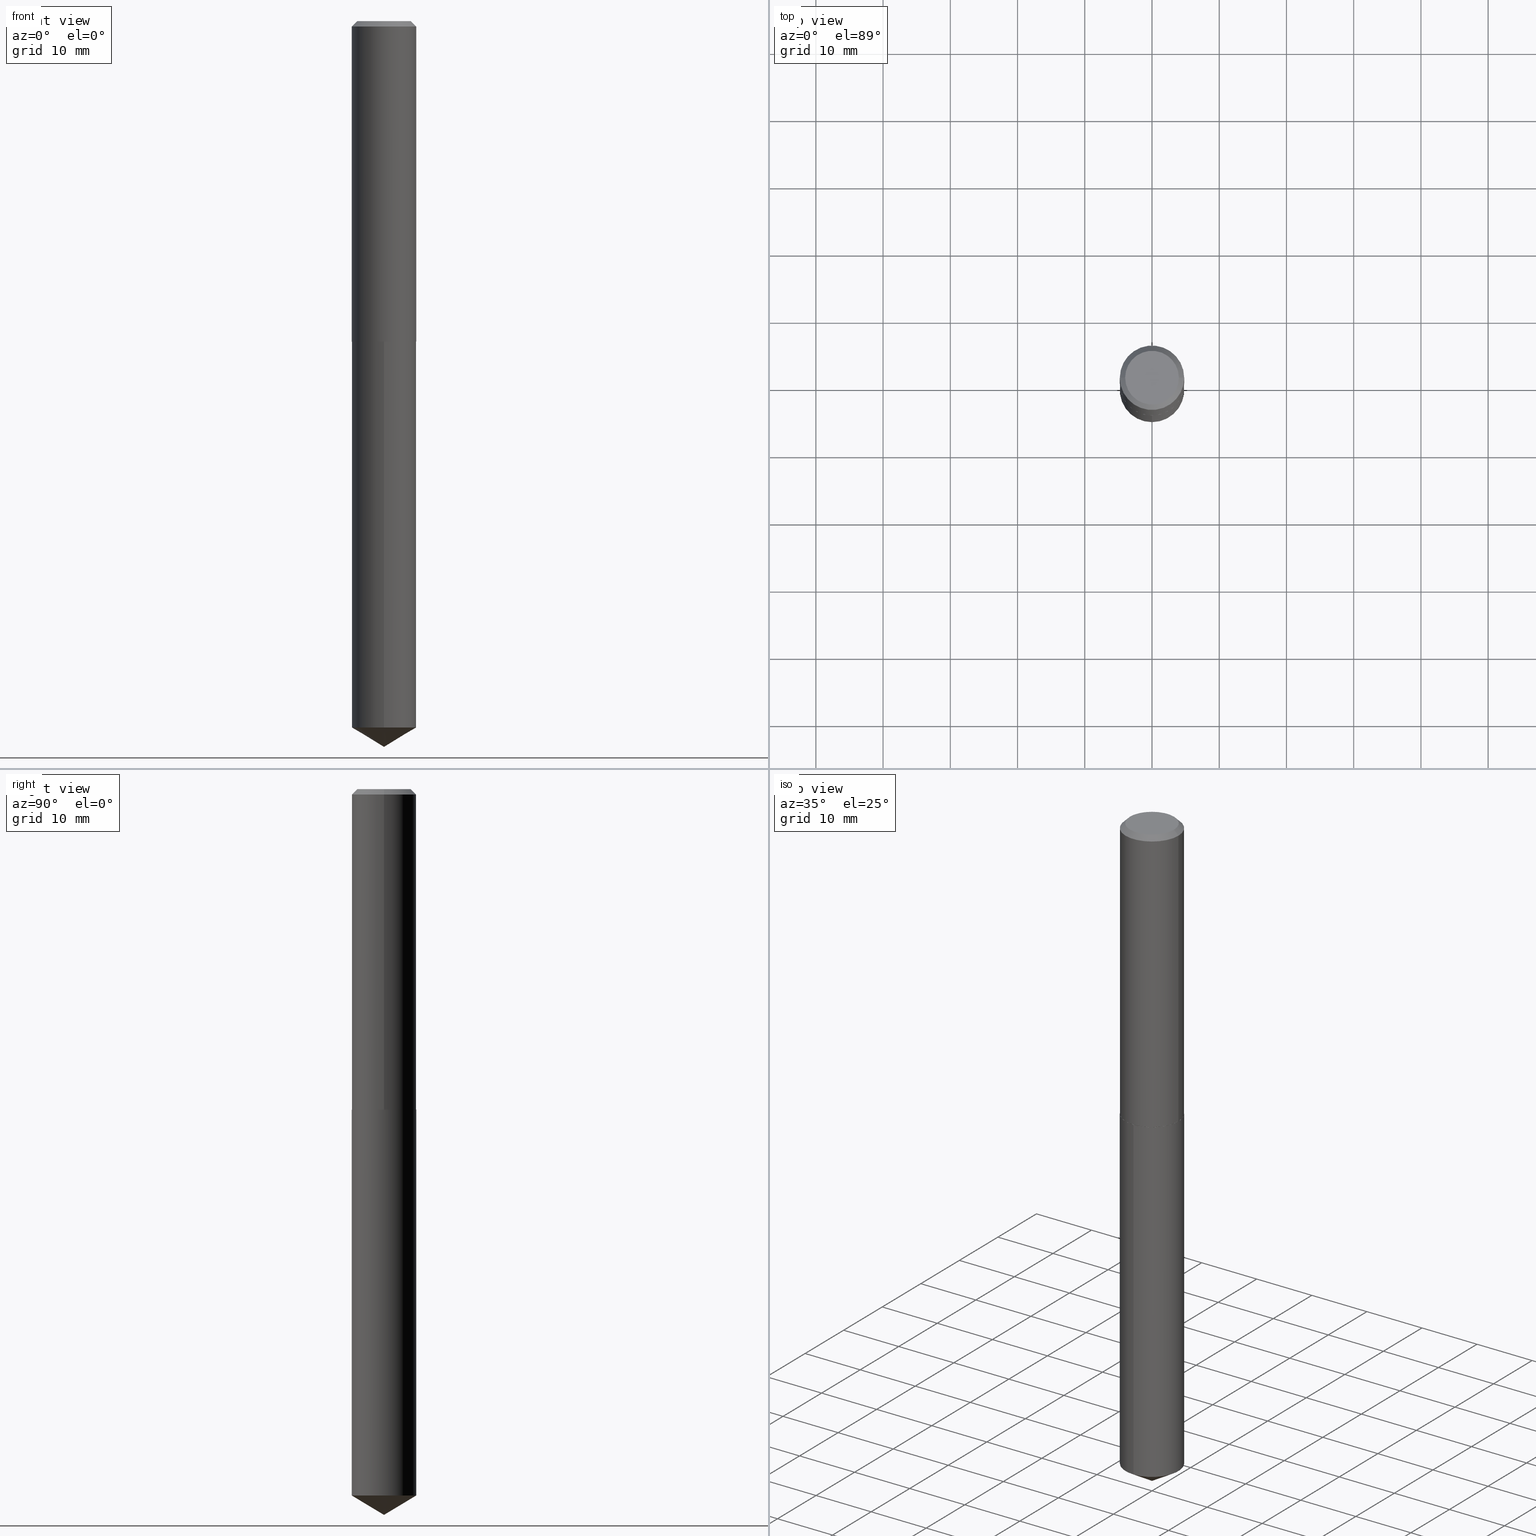
[diagram: canonical four-view strip — front | top / right | iso, engineering-drawing reading convention]
A machine part, canonical four-view strip (front | top / right | iso — engineering-drawing reading convention). The complete STEP part file that produces these views, byte-faithful:
ISO-10303-21;
HEADER;
FILE_DESCRIPTION (( 'STEP AP203' ),
    '1' );
FILE_NAME ('57201.STEP',
    '2024-04-22T23:53:59',
    ( '' ),
    ( '' ),
    'SwSTEP 2.0',
    'SolidWorks 2023',
    '' );
FILE_SCHEMA (( 'CONFIG_CONTROL_DESIGN' ));
ENDSEC;

DATA;
#1 = DIRECTION ( 'NONE',  ( -2.445468806185136597E-29, 3.491481338843145583E-15, 1.000000000000000000 ) ) ;
#2 = DIRECTION ( 'NONE',  ( -2.445480100698068853E-29, 3.491465164457782764E-15, 1.000000000000000000 ) ) ;
#3 = EDGE_LOOP ( 'NONE', ( #315, #22, #382 ) ) ;
#4 = DIRECTION ( 'NONE',  ( -2.445468806185136597E-29, 3.491481338843145583E-15, 1.000000000000000000 ) ) ;
#5 = ADVANCED_FACE ( 'NONE', ( #364 ), #340, .F. ) ;
#6 = VERTEX_POINT ( 'NONE', #379 ) ;
#7 = DIRECTION ( 'NONE',  ( -2.445480100698068853E-29, 3.491465164457782764E-15, 1.000000000000000000 ) ) ;
#8 = DIRECTION ( 'NONE',  ( 2.445468806185136597E-29, -3.491481338843145583E-15, -1.000000000000000000 ) ) ;
#9 = ORIENTED_EDGE ( 'NONE', *, *, #323, .F. ) ;
#10 = AXIS2_PLACEMENT_3D ( 'NONE', #254, #176, #144 ) ;
#11 = FACE_OUTER_BOUND ( 'NONE', #113, .T. ) ;
#12 = ORIENTED_EDGE ( 'NONE', *, *, #375, .F. ) ;
#13 = DIRECTION ( 'NONE',  ( -2.445468806185136877E-29, 3.491481338843145188E-15, 1.000000000000000000 ) ) ;
#14 = AXIS2_PLACEMENT_3D ( 'NONE', #338, #130, #98 ) ;
#15 = EDGE_CURVE ( 'NONE', #182, #253, #247, .T. ) ;
#16 = ORIENTED_EDGE ( 'NONE', *, *, #261, .T. ) ;
#17 = DESIGN_CONTEXT ( 'detailed design', #184, 'design' ) ;
#18 = COORDINATED_UNIVERSAL_TIME_OFFSET ( 5, 0, .BEHIND. ) ;
#19 = ORIENTED_EDGE ( 'NONE', *, *, #375, .T. ) ;
#20 = CC_DESIGN_PERSON_AND_ORGANIZATION_ASSIGNMENT ( #51, #390, ( #280 ) ) ;
#21 = AXIS2_PLACEMENT_3D ( 'NONE', #76, #211, #48 ) ;
#22 = ORIENTED_EDGE ( 'NONE', *, *, #201, .T. ) ;
#23 = DIRECTION ( 'NONE',  ( 1.000000000000000000, -6.982962677686266711E-15, 4.876179476867739168E-29 ) ) ;
#24 = ORIENTED_EDGE ( 'NONE', *, *, #27, .T. ) ;
#25 = CONICAL_SURFACE ( 'NONE', #142, 0.1885000000000002507, 0.7853981633975165577 ) ;
#26 = DIRECTION ( 'NONE',  ( -6.982962677686266711E-15, -1.000000000000000000, 2.898512460121233908E-15 ) ) ;
#27 = EDGE_CURVE ( 'NONE', #248, #325, #308, .T. ) ;
#28 = DIRECTION ( 'NONE',  ( -6.982962677686266711E-15, -1.000000000000000000, 2.898512460121233908E-15 ) ) ;
#29 = DIRECTION ( 'NONE',  ( -6.982962677686265922E-15, -1.000000000000000000, 3.468864327941581987E-15 ) ) ;
#30 = DIRECTION ( 'NONE',  ( 1.000000000000000000, -6.982962677686266711E-15, 4.876176775795936353E-29 ) ) ;
#31 = DIRECTION ( 'NONE',  ( -2.445480100698068853E-29, 3.491465164457782764E-15, 1.000000000000000000 ) ) ;
#32 = CARTESIAN_POINT ( 'NONE',  ( 1.039329042796679325E-28, -1.483872694894557399E-14, -4.250000000000000000 ) ) ;
#33 = CARTESIAN_POINT ( 'NONE',  ( 1.039329079976125017E-28, -1.483872694894557399E-14, -4.250000000000000000 ) ) ;
#34 = DIRECTION ( 'NONE',  ( 2.438088387897960049E-29, -3.491481338843145188E-15, -1.000000000000000000 ) ) ;
#35 = AXIS2_PLACEMENT_3D ( 'NONE', #92, #64, #271 ) ;
#36 = APPROVAL_DATE_TIME ( #282, #180 ) ;
#37 = LINE ( 'NONE', #100, #317 ) ;
#38 = VERTEX_POINT ( 'NONE', #268 ) ;
#39 = COORDINATED_UNIVERSAL_TIME_OFFSET ( 5, 0, .BEHIND. ) ;
#40 = CIRCLE ( 'NONE', #88, 0.1880000000000002780 ) ;
#41 = AXIS2_PLACEMENT_3D ( 'NONE', #359, #4, #133 ) ;
#42 = EDGE_CURVE ( 'NONE', #182, #248, #84, .T. ) ;
#43 = VERTEX_POINT ( 'NONE', #246 ) ;
#44 = CC_DESIGN_APPROVAL ( #267, ( #296 ) ) ;
#45 = PERSON_AND_ORGANIZATION ( #189, #75 ) ;
#46 = ORIENTED_EDGE ( 'NONE', *, *, #319, .T. ) ;
#47 = VECTOR ( 'NONE', #314, 39.37007874015748143 ) ;
#48 = DIRECTION ( 'NONE',  ( 1.000000000000000000, -6.982962677686266711E-15, 4.876176775795936353E-29 ) ) ;
#49 = CALENDAR_DATE ( 2024, 22, 4 ) ;
#50 = ORIENTED_EDGE ( 'NONE', *, *, #59, .T. ) ;
#51 = PERSON_AND_ORGANIZATION ( #189, #75 ) ;
#52 = PRODUCT_RELATED_PRODUCT_CATEGORY ( 'detail', '', ( #223 ) ) ;
#53 = DIRECTION ( 'NONE',  ( -2.445468806185136597E-29, 3.491481338843145583E-15, 1.000000000000000000 ) ) ;
#54 = DIRECTION ( 'NONE',  ( 0.7071067811865450192, -7.319954787623246579E-15, -0.7071067811865500152 ) ) ;
#55 = ORIENTED_EDGE ( 'NONE', *, *, #122, .F. ) ;
#56 = VECTOR ( 'NONE', #106, 39.37007874015748143 ) ;
#57 = FACE_OUTER_BOUND ( 'NONE', #293, .T. ) ;
#58 = LINE ( 'NONE', #85, #148 ) ;
#59 = EDGE_CURVE ( 'NONE', #38, #289, #80, .T. ) ;
#60 = DIRECTION ( 'NONE',  ( -2.445480100698068853E-29, 3.491465164457782764E-15, 1.000000000000000000 ) ) ;
#61 = APPROVAL_STATUS ( 'not_yet_approved' ) ;
#62 = ORIENTED_EDGE ( 'NONE', *, *, #42, .F. ) ;
#63 = AXIS2_PLACEMENT_3D ( 'NONE', #312, #285, #139 ) ;
#64 = DIRECTION ( 'NONE',  ( 2.445480100698068573E-29, -3.491465164457782764E-15, -1.000000000000000000 ) ) ;
#65 = AXIS2_PLACEMENT_3D ( 'NONE', #172, #146, #110 ) ;
#66 = CARTESIAN_POINT ( 'NONE',  ( -1.497417772954680954E-48, 2.137915722948511961E-34, 6.123233995736837940E-20 ) ) ;
#67 = ADVANCED_FACE ( 'NONE', ( #351 ), #326, .T. ) ;
#68 = EDGE_CURVE ( 'NONE', #253, #182, #40, .T. ) ;
#69 =( NAMED_UNIT ( * ) PLANE_ANGLE_UNIT ( ) SI_UNIT ( $, .RADIAN. ) );
#70 = ADVANCED_FACE ( 'NONE', ( #159 ), #165, .T. ) ;
#71 = AXIS2_PLACEMENT_3D ( 'NONE', #104, #77, #239 ) ;
#72 = ORIENTED_EDGE ( 'NONE', *, *, #68, .T. ) ;
#73 = DIRECTION ( 'NONE',  ( -2.445480100698068853E-29, 3.491465164457782764E-15, 1.000000000000000000 ) ) ;
#74 = AXIS2_PLACEMENT_3D ( 'NONE', #279, #8, #141 ) ;
#75 = ORGANIZATION ( 'UNSPECIFIED', 'UNSPECIFIED', '' ) ;
#76 = CARTESIAN_POINT ( 'NONE',  ( 0.000000000000000000, 0.000000000000000000, 0.000000000000000000 ) ) ;
#77 = DIRECTION ( 'NONE',  ( -2.445468806185136597E-29, 3.491481338843145583E-15, 1.000000000000000000 ) ) ;
#78 = EDGE_LOOP ( 'NONE', ( #358, #292 ) ) ;
#79 = ORIENTED_EDGE ( 'NONE', *, *, #68, .F. ) ;
#80 = LINE ( 'NONE', #242, #228 ) ;
#81 = FACE_OUTER_BOUND ( 'NONE', #194, .T. ) ;
#82 = ORIENTED_EDGE ( 'NONE', *, *, #319, .F. ) ;
#83 = VECTOR ( 'NONE', #269, 39.37007874015748143 ) ;
#84 = LINE ( 'NONE', #324, #116 ) ;
#85 = CARTESIAN_POINT ( 'NONE',  ( 0.1885000000000000286, -1.402312664418782881E-15, -0.03125000000000023592 ) ) ;
#86 = PRODUCT_DEFINITION ( 'UNKNOWN', '', #296, #17 ) ;
#87 = CLOSED_SHELL ( 'NONE', ( #152, #328, #70, #136, #337 ) ) ;
#88 = AXIS2_PLACEMENT_3D ( 'NONE', #320, #183, #99 ) ;
#89 = CARTESIAN_POINT ( 'NONE',  ( 0.1880000000000002780, -7.866307456413602737E-15, -1.876999999999999336 ) ) ;
#90 = MANIFOLD_SOLID_BREP ( 'Body-Move/Copy2[2]', #316 ) ;
#91 = CALENDAR_DATE ( 2024, 22, 4 ) ;
#92 = CARTESIAN_POINT ( 'NONE',  ( 4.590144949209500083E-29, -6.553510473008582355E-15, -1.876999999999999336 ) ) ;
#93 = APPROVAL_PERSON_ORGANIZATION ( #167, #318, #250 ) ;
#94 = LINE ( 'NONE', #33, #132 ) ;
#95 = ADVANCED_FACE ( 'NONE', ( #166 ), #356, .T. ) ;
#96 = MANIFOLD_SOLID_BREP ( 'Body-Move/Copy2[1]', #87 ) ;
#97 = PERSON_AND_ORGANIZATION_ROLE ( 'design_supplier' ) ;
#98 = DIRECTION ( 'NONE',  ( 1.000000000000000000, -6.982962677686264344E-15, 0.000000000000000000 ) ) ;
#99 = DIRECTION ( 'NONE',  ( 1.000000000000000000, -6.982962677686265922E-15, 0.000000000000000000 ) ) ;
#100 = CARTESIAN_POINT ( 'NONE',  ( 1.039324802836524486E-28, -1.483878766758823005E-14, -4.250000000000000000 ) ) ;
#101 = AXIS2_PLACEMENT_3D ( 'NONE', #198, #53, #30 ) ;
#102 = CC_DESIGN_PERSON_AND_ORGANIZATION_ASSIGNMENT ( #120, #97, ( #296 ) ) ;
#103 = APPROVAL_PERSON_ORGANIZATION ( #45, #267, #266 ) ;
#104 = CARTESIAN_POINT ( 'NONE',  ( 4.588922214806407281E-29, -6.551764732339160851E-15, -1.876499999999999613 ) ) ;
#105 = ADVANCED_BREP_SHAPE_REPRESENTATION ( '57201', ( #96, #90, #65 ), #243 ) ;
#106 = DIRECTION ( 'NONE',  ( -2.445468806185136877E-29, 3.491481338843145188E-15, 1.000000000000000000 ) ) ;
#107 = LINE ( 'NONE', #232, #191 ) ;
#108 = EDGE_LOOP ( 'NONE', ( #233, #206 ) ) ;
#109 = AXIS2_PLACEMENT_3D ( 'NONE', #226, #7, #222 ) ;
#110 = DIRECTION ( 'NONE',  ( 1.000000000000000000, 0.000000000000000000, 0.000000000000000000 ) ) ;
#111 =( LENGTH_UNIT ( ) NAMED_UNIT ( * ) SI_UNIT ( $, .METRE. ) );
#112 = DIRECTION ( 'NONE',  ( -2.445468806185136597E-29, 3.491481338843145583E-15, 1.000000000000000000 ) ) ;
#113 = EDGE_LOOP ( 'NONE', ( #335, #240, #50, #219 ) ) ;
#114 = CARTESIAN_POINT ( 'NONE',  ( 4.588922214806407281E-29, -6.551764732339160851E-15, -1.876499999999999613 ) ) ;
#115 = PERSON_AND_ORGANIZATION ( #189, #75 ) ;
#116 = VECTOR ( 'NONE', #217, 39.37007874015748143 ) ;
#117 = CIRCLE ( 'NONE', #41, 0.1885000000000000286 ) ;
#118 = EDGE_LOOP ( 'NONE', ( #346, #212, #385, #321 ) ) ;
#119 = ORIENTED_EDGE ( 'NONE', *, *, #42, .T. ) ;
#120 = PERSON_AND_ORGANIZATION ( #189, #75 ) ;
#121 = DIRECTION ( 'NONE',  ( 1.000000000000000000, -6.982962677686266711E-15, 0.000000000000000000 ) ) ;
#122 = EDGE_CURVE ( 'NONE', #352, #43, #255, .T. ) ;
#123 = ORIENTED_EDGE ( 'NONE', *, *, #214, .F. ) ;
#124 = AXIS2_PLACEMENT_3D ( 'NONE', #236, #205, #231 ) ;
#125 = DIRECTION ( 'NONE',  ( 1.000000000000000000, -6.982962677686264344E-15, 0.000000000000000000 ) ) ;
#126 = LOCAL_TIME ( 19, 53, 59.00000000000000000, #195 ) ;
#127 = ORIENTED_EDGE ( 'NONE', *, *, #15, .T. ) ;
#128 = DIRECTION ( 'NONE',  ( -1.000000000000000000, 6.982962677686265922E-15, -4.876176775795935793E-29 ) ) ;
#129 = DIRECTION ( 'NONE',  ( -6.982962677686266711E-15, -1.000000000000000000, 2.898512460121233908E-15 ) ) ;
#130 = DIRECTION ( 'NONE',  ( -2.445468806185136597E-29, 3.491481338843145583E-15, 1.000000000000000000 ) ) ;
#131 = EDGE_CURVE ( 'NONE', #43, #352, #215, .T. ) ;
#132 = VECTOR ( 'NONE', #270, 39.37007874015748854 ) ;
#133 = DIRECTION ( 'NONE',  ( 1.000000000000000000, -6.982962677686266711E-15, 0.000000000000000000 ) ) ;
#134 = DATE_AND_TIME ( #91, #362 ) ;
#135 = CARTESIAN_POINT ( 'NONE',  ( -2.994835545909361907E-48, 4.275831445897023923E-34, 1.224646799147367588E-19 ) ) ;
#136 = ADVANCED_FACE ( 'NONE', ( #330 ), #336, .T. ) ;
#137 = CALENDAR_DATE ( 2024, 22, 4 ) ;
#138 = CARTESIAN_POINT ( 'NONE',  ( 0.1572500000000000009, -1.240562987284178150E-15, 1.224646799229136555E-19 ) ) ;
#139 = DIRECTION ( 'NONE',  ( 1.000000000000000000, -6.982962677686266711E-15, 4.876179476867739168E-29 ) ) ;
#140 = EDGE_CURVE ( 'NONE', #290, #43, #94, .T. ) ;
#141 = DIRECTION ( 'NONE',  ( -1.000000000000000000, 6.982962677686266711E-15, 0.000000000000000000 ) ) ;
#142 = AXIS2_PLACEMENT_3D ( 'NONE', #199, #1, #192 ) ;
#143 = CARTESIAN_POINT ( 'NONE',  ( 0.1885000000000002507, -7.868053197083023451E-15, -1.876499999999999613 ) ) ;
#144 = DIRECTION ( 'NONE',  ( -1.000000000000000000, 6.982962677686266711E-15, 0.000000000000000000 ) ) ;
#145 = EDGE_LOOP ( 'NONE', ( #357, #329, #55 ) ) ;
#146 = DIRECTION ( 'NONE',  ( 0.000000000000000000, 0.000000000000000000, 1.000000000000000000 ) ) ;
#147 = ORIENTED_EDGE ( 'NONE', *, *, #203, .T. ) ;
#148 = VECTOR ( 'NONE', #54, 39.37007874015748143 ) ;
#149 = PERSON_AND_ORGANIZATION ( #189, #75 ) ;
#150 = ORIENTED_EDGE ( 'NONE', *, *, #15, .F. ) ;
#151 = ORIENTED_EDGE ( 'NONE', *, *, #174, .F. ) ;
#152 = ADVANCED_FACE ( 'NONE', ( #57 ), #297, .T. ) ;
#153 = ORIENTED_EDGE ( 'NONE', *, *, #377, .F. ) ;
#154 = CC_DESIGN_SECURITY_CLASSIFICATION ( #280, ( #296 ) ) ;
#155 = APPROVAL_DATE_TIME ( #260, #267 ) ;
#156 = ORIENTED_EDGE ( 'NONE', *, *, #365, .F. ) ;
#157 = DIRECTION ( 'NONE',  ( -0.7071067811865450192, 2.468850131082230634E-15, -0.7071067811865500152 ) ) ;
#158 = FACE_OUTER_BOUND ( 'NONE', #78, .T. ) ;
#159 = FACE_OUTER_BOUND ( 'NONE', #3, .T. ) ;
#160 = VERTEX_POINT ( 'NONE', #251 ) ;
#161 = CARTESIAN_POINT ( 'NONE',  ( 4.590144949209500083E-29, -6.553510473008582355E-15, -1.876999999999999336 ) ) ;
#162 = DIRECTION ( 'NONE',  ( -6.982962677686266711E-15, -1.000000000000000000, 2.898512460121233908E-15 ) ) ;
#163 = SHAPE_DEFINITION_REPRESENTATION ( #341, #105 ) ;
#164 = DIRECTION ( 'NONE',  ( -2.445480100698068853E-29, 3.491465164457782764E-15, 1.000000000000000000 ) ) ;
#165 = CONICAL_SURFACE ( 'NONE', #109, 65.52281426576865897, 1.029744258676656088 ) ;
#166 = FACE_OUTER_BOUND ( 'NONE', #349, .T. ) ;
#167 = PERSON_AND_ORGANIZATION ( #189, #75 ) ;
#168 = CC_DESIGN_APPROVAL ( #180, ( #86 ) ) ;
#169 = LINE ( 'NONE', #221, #309 ) ;
#170 = CALENDAR_DATE ( 2024, 22, 4 ) ;
#171 = CARTESIAN_POINT ( 'NONE',  ( -1.316288464743815466E-15, -0.1885000000000065790, -1.876999999999998892 ) ) ;
#172 = CARTESIAN_POINT ( 'NONE',  ( 0.000000000000000000, 0.000000000000000000, 0.000000000000000000 ) ) ;
#173 = CONICAL_SURFACE ( 'NONE', #303, 65.52281426576865897, 1.029744258676656088 ) ;
#174 = EDGE_CURVE ( 'NONE', #6, #289, #117, .T. ) ;
#175 = ORIENTED_EDGE ( 'NONE', *, *, #203, .F. ) ;
#176 = DIRECTION ( 'NONE',  ( 2.445468806185136597E-29, -3.491481338843145583E-15, -1.000000000000000000 ) ) ;
#177 = CALENDAR_DATE ( 2024, 22, 4 ) ;
#178 = EDGE_LOOP ( 'NONE', ( #82, #378, #288, #153 ) ) ;
#179 = AXIS2_PLACEMENT_3D ( 'NONE', #114, #387, #125 ) ;
#180 = APPROVAL ( #347, 'UNSPECIFIED' ) ;
#181 = APPROVAL_STATUS ( 'not_yet_approved' ) ;
#182 = VERTEX_POINT ( 'NONE', #89 ) ;
#183 = DIRECTION ( 'NONE',  ( -2.445468806185136597E-29, 3.491481338843145583E-15, 1.000000000000000000 ) ) ;
#184 = APPLICATION_CONTEXT ( 'configuration controlled 3d designs of mechanical parts and assemblies' ) ;
#185 = CIRCLE ( 'NONE', #124, 0.1885000000000000286 ) ;
#186 = LOCAL_TIME ( 19, 53, 59.00000000000000000, #18 ) ;
#187 = ORIENTED_EDGE ( 'NONE', *, *, #122, .T. ) ;
#188 = CARTESIAN_POINT ( 'NONE',  ( 4.590144949209500083E-29, -6.553510473008582355E-15, -1.876999999999999336 ) ) ;
#189 = PERSON ( 'UNSPECIFIED', 'UNSPECIFIED', 'UNSPECIFIED', ('UNSPECIFIED'), ('UNSPECIFIED'), ('UNSPECIFIED') ) ;
#190 = FACE_OUTER_BOUND ( 'NONE', #244, .T. ) ;
#191 = VECTOR ( 'NONE', #13, 39.37007874015748143 ) ;
#192 = DIRECTION ( 'NONE',  ( 1.000000000000000000, -6.982962677686264344E-15, 0.000000000000000000 ) ) ;
#193 = CARTESIAN_POINT ( 'NONE',  ( -0.1885000000000002507, -5.212391675431369628E-15, -1.876499999999999613 ) ) ;
#194 = EDGE_LOOP ( 'NONE', ( #150, #79 ) ) ;
#195 = COORDINATED_UNIVERSAL_TIME_OFFSET ( 5, 0, .BEHIND. ) ;
#196 = FACE_OUTER_BOUND ( 'NONE', #283, .T. ) ;
#197 = AXIS2_PLACEMENT_3D ( 'NONE', #272, #2, #129 ) ;
#198 = CARTESIAN_POINT ( 'NONE',  ( 0.000000000000000000, 0.000000000000000000, 0.000000000000000000 ) ) ;
#199 = CARTESIAN_POINT ( 'NONE',  ( 4.588922214806407281E-29, -6.551764732339160851E-15, -1.876499999999999613 ) ) ;
#200 = AXIS2_PLACEMENT_3D ( 'NONE', #370, #73, #344 ) ;
#201 = EDGE_CURVE ( 'NONE', #290, #352, #37, .T. ) ;
#202 = APPLICATION_PROTOCOL_DEFINITION ( 'international standard', 'config_control_design', 1994, #371 ) ;
#203 = EDGE_CURVE ( 'NONE', #253, #325, #229, .T. ) ;
#204 = PERSON_AND_ORGANIZATION ( #189, #75 ) ;
#205 = DIRECTION ( 'NONE',  ( -2.445480100698068853E-29, 3.491465164457782764E-15, 1.000000000000000000 ) ) ;
#206 = ORIENTED_EDGE ( 'NONE', *, *, #302, .T. ) ;
#207 = CC_DESIGN_PERSON_AND_ORGANIZATION_ASSIGNMENT ( #204, #368, ( #223 ) ) ;
#208 = CARTESIAN_POINT ( 'NONE',  ( 4.590144949209500083E-29, -6.553510473008582355E-15, -1.876999999999999336 ) ) ;
#209 = ORIENTED_EDGE ( 'NONE', *, *, #365, .T. ) ;
#210 = AXIS2_PLACEMENT_3D ( 'NONE', #188, #291, #383 ) ;
#211 = DIRECTION ( 'NONE',  ( -2.445468806185136597E-29, 3.491481338843145583E-15, 1.000000000000000000 ) ) ;
#212 = ORIENTED_EDGE ( 'NONE', *, *, #354, .T. ) ;
#213 = DATE_TIME_ROLE ( 'creation_date' ) ;
#214 = EDGE_CURVE ( 'NONE', #245, #160, #185, .T. ) ;
#215 = CIRCLE ( 'NONE', #234, 0.1885000000000000286 ) ;
#216 = PLANE ( 'NONE',  #286 ) ;
#217 = DIRECTION ( 'NONE',  ( 0.7071067811865957564, -2.468850131082761932E-15, 0.7071067811864992780 ) ) ;
#218 = CARTESIAN_POINT ( 'NONE',  ( -8.588547489380520474E-28, 1.226205011349528872E-13, 35.12007874015748143 ) ) ;
#219 = ORIENTED_EDGE ( 'NONE', *, *, #264, .T. ) ;
#220 = CARTESIAN_POINT ( 'NONE',  ( 1.011628870664295292E-28, -1.444330618934138545E-14, -4.136737773313305055 ) ) ;
#221 = CARTESIAN_POINT ( 'NONE',  ( 1.339373056907834611E-15, 0.1884999999999934506, -1.877000000000000002 ) ) ;
#222 = DIRECTION ( 'NONE',  ( -6.982962677686265922E-15, -1.000000000000000000, 3.468864327941581987E-15 ) ) ;
#223 = PRODUCT ( '57201', '57201', '', ( #311 ) ) ;
#224 = DATE_AND_TIME ( #137, #126 ) ;
#225 = DIRECTION ( 'NONE',  ( -2.445468806185136597E-29, 3.491481338843145583E-15, 1.000000000000000000 ) ) ;
#226 = CARTESIAN_POINT ( 'NONE',  ( -8.588547489380520474E-28, 1.226205011349528872E-13, 35.12007874015748143 ) ) ;
#227 = FACE_OUTER_BOUND ( 'NONE', #145, .T. ) ;
#228 = VECTOR ( 'NONE', #157, 39.37007874015748143 ) ;
#229 = LINE ( 'NONE', #342, #47 ) ;
#230 = CARTESIAN_POINT ( 'NONE',  ( 0.1885000000000001119, -1.316288464743862009E-15, 9.191593222375345023E-30 ) ) ;
#231 = DIRECTION ( 'NONE',  ( -6.982962677686266711E-15, -1.000000000000000000, 2.898512460121233908E-15 ) ) ;
#232 = CARTESIAN_POINT ( 'NONE',  ( -0.1885000000000001119, 1.339373056907789646E-15, -9.272192645130503377E-30 ) ) ;
#233 = ORIENTED_EDGE ( 'NONE', *, *, #249, .T. ) ;
#234 = AXIS2_PLACEMENT_3D ( 'NONE', #220, #60, #28 ) ;
#235 = PERSON_AND_ORGANIZATION ( #189, #75 ) ;
#236 = CARTESIAN_POINT ( 'NONE',  ( 4.590144949209500083E-29, -6.553510473008582355E-15, -1.876999999999999336 ) ) ;
#237 = CC_DESIGN_DATE_AND_TIME_ASSIGNMENT ( #224, #327, ( #280 ) ) ;
#238 = LENGTH_MEASURE_WITH_UNIT ( LENGTH_MEASURE( 0.02539999999999999897 ), #111 );
#239 = DIRECTION ( 'NONE',  ( 1.000000000000000000, -6.982962677686264344E-15, 0.000000000000000000 ) ) ;
#240 = ORIENTED_EDGE ( 'NONE', *, *, #249, .F. ) ;
#241 = AXIS2_PLACEMENT_3D ( 'NONE', #161, #300, #26 ) ;
#242 = CARTESIAN_POINT ( 'NONE',  ( -0.1885000000000000286, 1.207179672905012316E-15, -0.03125000000000023592 ) ) ;
#243 =( GEOMETRIC_REPRESENTATION_CONTEXT ( 3 ) GLOBAL_UNCERTAINTY_ASSIGNED_CONTEXT ( ( #276 ) ) GLOBAL_UNIT_ASSIGNED_CONTEXT ( ( #376, #69, #256 ) ) REPRESENTATION_CONTEXT ( 'NONE', 'WORKASPACE' ) );
#244 = EDGE_LOOP ( 'NONE', ( #175, #72, #119, #384 ) ) ;
#245 = VERTEX_POINT ( 'NONE', #171 ) ;
#246 = CARTESIAN_POINT ( 'NONE',  ( 1.339373056907889436E-15, 0.1884999999999855125, -4.136737773313305944 ) ) ;
#247 = CIRCLE ( 'NONE', #210, 0.1880000000000002780 ) ;
#248 = VERTEX_POINT ( 'NONE', #143 ) ;
#249 = EDGE_CURVE ( 'NONE', #38, #322, #380, .T. ) ;
#250 = APPROVAL_ROLE ( '' ) ;
#251 = CARTESIAN_POINT ( 'NONE',  ( 1.339373056907890225E-15, 0.1884999999999934506, -1.877000000000000002 ) ) ;
#252 = LINE ( 'NONE', #332, #83 ) ;
#253 = VERTEX_POINT ( 'NONE', #369 ) ;
#254 = CARTESIAN_POINT ( 'NONE',  ( 7.642090019328608793E-31, -1.091087918388491130E-16, -0.03125000000000023592 ) ) ;
#255 = CIRCLE ( 'NONE', #372, 0.1885000000000000286 ) ;
#256 =( NAMED_UNIT ( * ) SI_UNIT ( $, .STERADIAN. ) SOLID_ANGLE_UNIT ( ) );
#257 = ADVANCED_FACE ( 'NONE', ( #339 ), #353, .T. ) ;
#258 = CIRCLE ( 'NONE', #295, 0.1572500000000000009 ) ;
#259 = PERSON_AND_ORGANIZATION_ROLE ( 'creator' ) ;
#260 = DATE_AND_TIME ( #49, #186 ) ;
#261 = EDGE_CURVE ( 'NONE', #325, #248, #345, .T. ) ;
#262 = APPROVAL_PERSON_ORGANIZATION ( #235, #180, #313 ) ;
#263 = PERSON_AND_ORGANIZATION_ROLE ( 'creator' ) ;
#264 = EDGE_CURVE ( 'NONE', #289, #6, #350, .T. ) ;
#265 = CARTESIAN_POINT ( 'NONE',  ( 7.642090019328608793E-31, -1.091087918388491130E-16, -0.03125000000000023592 ) ) ;
#266 = APPROVAL_ROLE ( '' ) ;
#267 = APPROVAL ( #181, 'UNSPECIFIED' ) ;
#268 = CARTESIAN_POINT ( 'NONE',  ( -0.1572500000000000009, 1.152625276985588752E-15, 1.224646799068669035E-19 ) ) ;
#269 = DIRECTION ( 'NONE',  ( -2.445480100698068853E-29, 3.491465164457782764E-15, 1.000000000000000000 ) ) ;
#270 = DIRECTION ( 'NONE',  ( 6.090539988449786324E-15, 0.8571673007021148871, 0.5150380749100498257 ) ) ;
#271 = DIRECTION ( 'NONE',  ( 6.982962677686265922E-15, 1.000000000000000000, -3.491465164457782764E-15 ) ) ;
#272 = CARTESIAN_POINT ( 'NONE',  ( 4.590144949209500083E-29, -6.553510473008582355E-15, -1.876999999999999336 ) ) ;
#273 = PLANE ( 'NONE',  #35 ) ;
#274 = CARTESIAN_POINT ( 'NONE',  ( -0.1885000000000000286, -1.991063705181214936E-15, -0.03125000000000023592 ) ) ;
#275 = CARTESIAN_POINT ( 'NONE',  ( 1.011628870664295292E-28, -1.444330618934138545E-14, -4.136737773313305055 ) ) ;
#276 = UNCERTAINTY_MEASURE_WITH_UNIT (LENGTH_MEASURE( 1.000000000000000082E-05 ), #376, 'distance_accuracy_value', 'NONE');
#277 = EDGE_LOOP ( 'NONE', ( #156, #16, #19, #374 ) ) ;
#278 = DATE_AND_TIME ( #170, #304 ) ;
#279 = CARTESIAN_POINT ( 'NONE',  ( 7.642090019328608793E-31, -1.091087918388491130E-16, -0.03125000000000023592 ) ) ;
#280 = SECURITY_CLASSIFICATION ( '', '', #298 ) ;
#281 = ORIENTED_EDGE ( 'NONE', *, *, #27, .F. ) ;
#282 = DATE_AND_TIME ( #177, #287 ) ;
#283 = EDGE_LOOP ( 'NONE', ( #127, #147, #281, #62 ) ) ;
#284 = ADVANCED_FACE ( 'NONE', ( #81 ), #216, .F. ) ;
#285 = DIRECTION ( 'NONE',  ( -2.445468806185136597E-29, 3.491481338843145583E-15, 1.000000000000000000 ) ) ;
#286 = AXIS2_PLACEMENT_3D ( 'NONE', #208, #299, #333 ) ;
#287 = LOCAL_TIME ( 19, 53, 59.00000000000000000, #39 ) ;
#288 = ORIENTED_EDGE ( 'NONE', *, *, #323, .T. ) ;
#289 = VERTEX_POINT ( 'NONE', #274 ) ;
#290 = VERTEX_POINT ( 'NONE', #32 ) ;
#291 = DIRECTION ( 'NONE',  ( -2.445468806185136597E-29, 3.491481338843145583E-15, 1.000000000000000000 ) ) ;
#292 = ORIENTED_EDGE ( 'NONE', *, *, #377, .T. ) ;
#293 = EDGE_LOOP ( 'NONE', ( #187, #46, #123, #9 ) ) ;
#294 = APPROVAL_DATE_TIME ( #134, #318 ) ;
#295 = AXIS2_PLACEMENT_3D ( 'NONE', #135, #225, #23 ) ;
#296 = PRODUCT_DEFINITION_FORMATION_WITH_SPECIFIED_SOURCE ( 'ANY', '', #223, .NOT_KNOWN. ) ;
#297 = CYLINDRICAL_SURFACE ( 'NONE', #197, 0.1885000000000000286 ) ;
#298 = SECURITY_CLASSIFICATION_LEVEL ( 'unclassified' ) ;
#299 = DIRECTION ( 'NONE',  ( -2.438088387897960049E-29, 3.491481338843145188E-15, 1.000000000000000000 ) ) ;
#300 = DIRECTION ( 'NONE',  ( -2.445480100698068853E-29, 3.491465164457782764E-15, 1.000000000000000000 ) ) ;
#301 = AXIS2_PLACEMENT_3D ( 'NONE', #66, #34, #128 ) ;
#302 = EDGE_CURVE ( 'NONE', #322, #38, #258, .T. ) ;
#303 = AXIS2_PLACEMENT_3D ( 'NONE', #218, #164, #29 ) ;
#304 = LOCAL_TIME ( 19, 53, 59.00000000000000000, #305 ) ;
#305 = COORDINATED_UNIVERSAL_TIME_OFFSET ( 5, 0, .BEHIND. ) ;
#306 = CC_DESIGN_PERSON_AND_ORGANIZATION_ASSIGNMENT ( #149, #259, ( #86 ) ) ;
#307 = APPLICATION_PROTOCOL_DEFINITION ( 'international standard', 'config_control_design', 1994, #184 ) ;
#308 = CIRCLE ( 'NONE', #179, 0.1885000000000002507 ) ;
#309 = VECTOR ( 'NONE', #31, 39.37007874015748143 ) ;
#310 = CC_DESIGN_DATE_AND_TIME_ASSIGNMENT ( #278, #213, ( #86 ) ) ;
#311 = MECHANICAL_CONTEXT ( 'NONE', #371, 'mechanical' ) ;
#312 = CARTESIAN_POINT ( 'NONE',  ( -2.994835545909361907E-48, 4.275831445897023923E-34, 1.224646799147367588E-19 ) ) ;
#313 = APPROVAL_ROLE ( '' ) ;
#314 = DIRECTION ( 'NONE',  ( -0.7071067811865957564, 7.493145998870527710E-15, 0.7071067811864992780 ) ) ;
#315 = ORIENTED_EDGE ( 'NONE', *, *, #140, .F. ) ;
#316 = CLOSED_SHELL ( 'NONE', ( #257, #95, #334, #284, #363, #67, #367, #5 ) ) ;
#317 = VECTOR ( 'NONE', #373, 39.37007874015748143 ) ;
#318 = APPROVAL ( #61, 'UNSPECIFIED' ) ;
#319 = EDGE_CURVE ( 'NONE', #43, #160, #169, .T. ) ;
#320 = CARTESIAN_POINT ( 'NONE',  ( 4.590144949209500083E-29, -6.553510473008582355E-15, -1.876999999999999336 ) ) ;
#321 = ORIENTED_EDGE ( 'NONE', *, *, #59, .F. ) ;
#322 = VERTEX_POINT ( 'NONE', #138 ) ;
#323 = EDGE_CURVE ( 'NONE', #352, #245, #252, .T. ) ;
#324 = CARTESIAN_POINT ( 'NONE',  ( 0.1885000000000002507, -7.868053197083023451E-15, -1.876499999999999613 ) ) ;
#325 = VERTEX_POINT ( 'NONE', #193 ) ;
#326 = CYLINDRICAL_SURFACE ( 'NONE', #21, 0.1885000000000001119 ) ;
#327 = DATE_TIME_ROLE ( 'classification_date' ) ;
#328 = ADVANCED_FACE ( 'NONE', ( #227 ), #173, .T. ) ;
#329 = ORIENTED_EDGE ( 'NONE', *, *, #140, .T. ) ;
#330 = FACE_OUTER_BOUND ( 'NONE', #178, .T. ) ;
#331 = CIRCLE ( 'NONE', #200, 0.1885000000000000286 ) ;
#332 = CARTESIAN_POINT ( 'NONE',  ( -1.316288464743815466E-15, -0.1885000000000065790, -1.876999999999998892 ) ) ;
#333 = DIRECTION ( 'NONE',  ( 1.000000000000000000, -6.982962677686265922E-15, 4.876176775795935793E-29 ) ) ;
#334 = ADVANCED_FACE ( 'NONE', ( #196 ), #386, .T. ) ;
#335 = ORIENTED_EDGE ( 'NONE', *, *, #354, .F. ) ;
#336 = CYLINDRICAL_SURFACE ( 'NONE', #241, 0.1885000000000000286 ) ;
#337 = ADVANCED_FACE ( 'NONE', ( #158 ), #273, .F. ) ;
#338 = CARTESIAN_POINT ( 'NONE',  ( 4.588922214806407281E-29, -6.551764732339160851E-15, -1.876499999999999613 ) ) ;
#339 = FACE_OUTER_BOUND ( 'NONE', #118, .T. ) ;
#340 = PLANE ( 'NONE',  #301 ) ;
#341 = PRODUCT_DEFINITION_SHAPE ( 'NONE', 'NONE',  #86 ) ;
#342 = CARTESIAN_POINT ( 'NONE',  ( -0.1885000000000002507, -5.212391675431369628E-15, -1.876499999999999613 ) ) ;
#343 = LINE ( 'NONE', #230, #56 ) ;
#344 = DIRECTION ( 'NONE',  ( -6.982962677686266711E-15, -1.000000000000000000, 2.898512460121233908E-15 ) ) ;
#345 = CIRCLE ( 'NONE', #71, 0.1885000000000002507 ) ;
#346 = ORIENTED_EDGE ( 'NONE', *, *, #302, .F. ) ;
#347 = APPROVAL_STATUS ( 'not_yet_approved' ) ;
#348 = DIMENSIONAL_EXPONENTS ( 1.000000000000000000, 0.000000000000000000, 0.000000000000000000, 0.000000000000000000, 0.000000000000000000, 0.000000000000000000, 0.000000000000000000 ) ;
#349 = EDGE_LOOP ( 'NONE', ( #24, #209, #151, #12 ) ) ;
#350 = CIRCLE ( 'NONE', #361, 0.1885000000000000286 ) ;
#351 = FACE_OUTER_BOUND ( 'NONE', #277, .T. ) ;
#352 = VERTEX_POINT ( 'NONE', #388 ) ;
#353 = CONICAL_SURFACE ( 'NONE', #74, 0.1885000000000000286, 0.7853981633974447263 ) ;
#354 = EDGE_CURVE ( 'NONE', #322, #6, #58, .T. ) ;
#355 = DIRECTION ( 'NONE',  ( -2.445480100698068853E-29, 3.491465164457782764E-15, 1.000000000000000000 ) ) ;
#356 = CYLINDRICAL_SURFACE ( 'NONE', #101, 0.1885000000000001119 ) ;
#357 = ORIENTED_EDGE ( 'NONE', *, *, #201, .F. ) ;
#358 = ORIENTED_EDGE ( 'NONE', *, *, #214, .T. ) ;
#359 = CARTESIAN_POINT ( 'NONE',  ( 7.642090019328608793E-31, -1.091087918388491130E-16, -0.03125000000000023592 ) ) ;
#360 = COORDINATED_UNIVERSAL_TIME_OFFSET ( 5, 0, .BEHIND. ) ;
#361 = AXIS2_PLACEMENT_3D ( 'NONE', #265, #112, #121 ) ;
#362 = LOCAL_TIME ( 19, 53, 59.00000000000000000, #360 ) ;
#363 = ADVANCED_FACE ( 'NONE', ( #190 ), #25, .T. ) ;
#364 = FACE_OUTER_BOUND ( 'NONE', #108, .T. ) ;
#365 = EDGE_CURVE ( 'NONE', #325, #289, #107, .T. ) ;
#366 = CONICAL_SURFACE ( 'NONE', #10, 0.1885000000000000286, 0.7853981633974447263 ) ;
#367 = ADVANCED_FACE ( 'NONE', ( #11 ), #366, .T. ) ;
#368 = PERSON_AND_ORGANIZATION_ROLE ( 'design_owner' ) ;
#369 = CARTESIAN_POINT ( 'NONE',  ( -0.1880000000000002780, -5.215040902605480829E-15, -1.876999999999999336 ) ) ;
#370 = CARTESIAN_POINT ( 'NONE',  ( 4.590144949209500083E-29, -6.553510473008582355E-15, -1.876999999999999336 ) ) ;
#371 = APPLICATION_CONTEXT ( 'configuration controlled 3d designs of mechanical parts and assemblies' ) ;
#372 = AXIS2_PLACEMENT_3D ( 'NONE', #275, #355, #162 ) ;
#373 = DIRECTION ( 'NONE',  ( -5.985567269335949168E-15, -0.8571673007021112234, 0.5150380749100558209 ) ) ;
#374 = ORIENTED_EDGE ( 'NONE', *, *, #264, .F. ) ;
#375 = EDGE_CURVE ( 'NONE', #248, #6, #343, .T. ) ;
#376 =( CONVERSION_BASED_UNIT ( 'INCH', #238 ) LENGTH_UNIT ( ) NAMED_UNIT ( #348 ) );
#377 = EDGE_CURVE ( 'NONE', #160, #245, #331, .T. ) ;
#378 = ORIENTED_EDGE ( 'NONE', *, *, #131, .T. ) ;
#379 = CARTESIAN_POINT ( 'NONE',  ( 0.1885000000000000286, -1.425397256582710518E-15, -0.03125000000000023592 ) ) ;
#380 = CIRCLE ( 'NONE', #63, 0.1572500000000000009 ) ;
#381 = CC_DESIGN_APPROVAL ( #318, ( #280 ) ) ;
#382 = ORIENTED_EDGE ( 'NONE', *, *, #131, .F. ) ;
#383 = DIRECTION ( 'NONE',  ( 1.000000000000000000, -6.982962677686265922E-15, 0.000000000000000000 ) ) ;
#384 = ORIENTED_EDGE ( 'NONE', *, *, #261, .F. ) ;
#385 = ORIENTED_EDGE ( 'NONE', *, *, #174, .T. ) ;
#386 = CONICAL_SURFACE ( 'NONE', #14, 0.1885000000000002507, 0.7853981633975165577 ) ;
#387 = DIRECTION ( 'NONE',  ( -2.445468806185136597E-29, 3.491481338843145583E-15, 1.000000000000000000 ) ) ;
#388 = CARTESIAN_POINT ( 'NONE',  ( -1.316288464743759851E-15, -0.1885000000000144338, -4.136737773313304167 ) ) ;
#389 = CC_DESIGN_PERSON_AND_ORGANIZATION_ASSIGNMENT ( #115, #263, ( #296 ) ) ;
#390 = PERSON_AND_ORGANIZATION_ROLE ( 'classification_officer' ) ;
ENDSEC;
END-ISO-10303-21;
